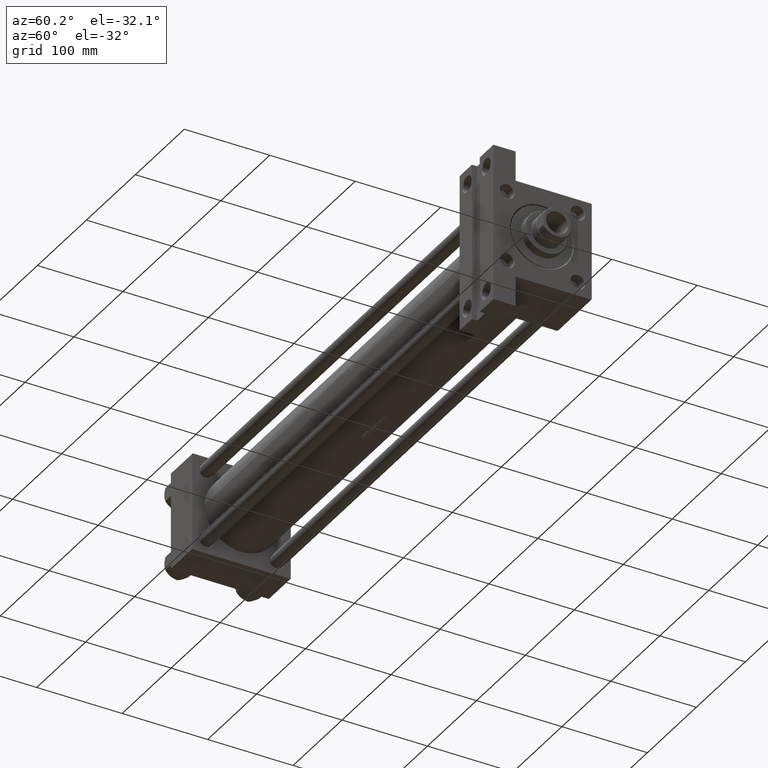
[diagram: clean part render]
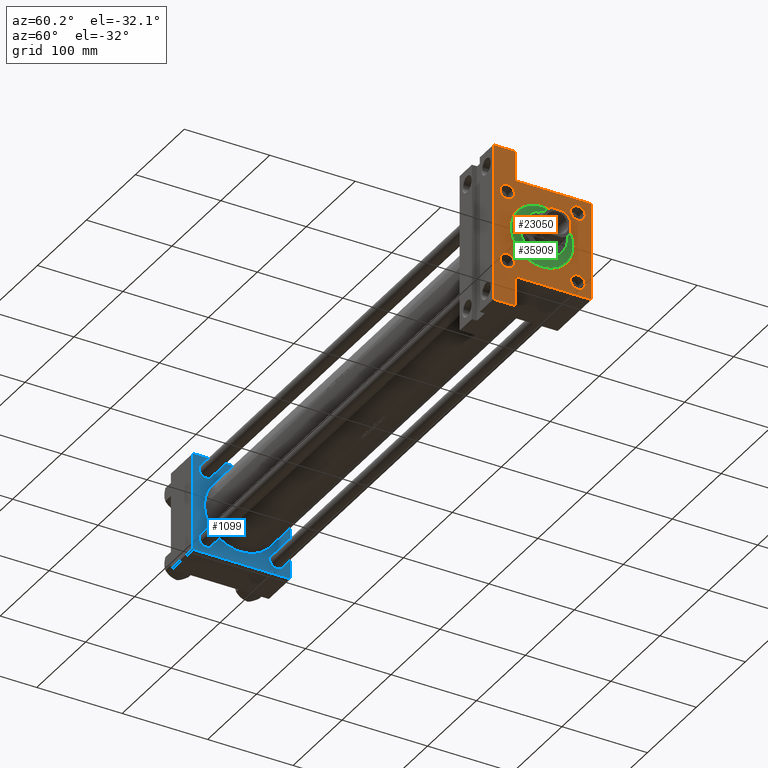
[diagram: same view with three faces highlighted in distinct colors, each labeled with its STEP entity id]
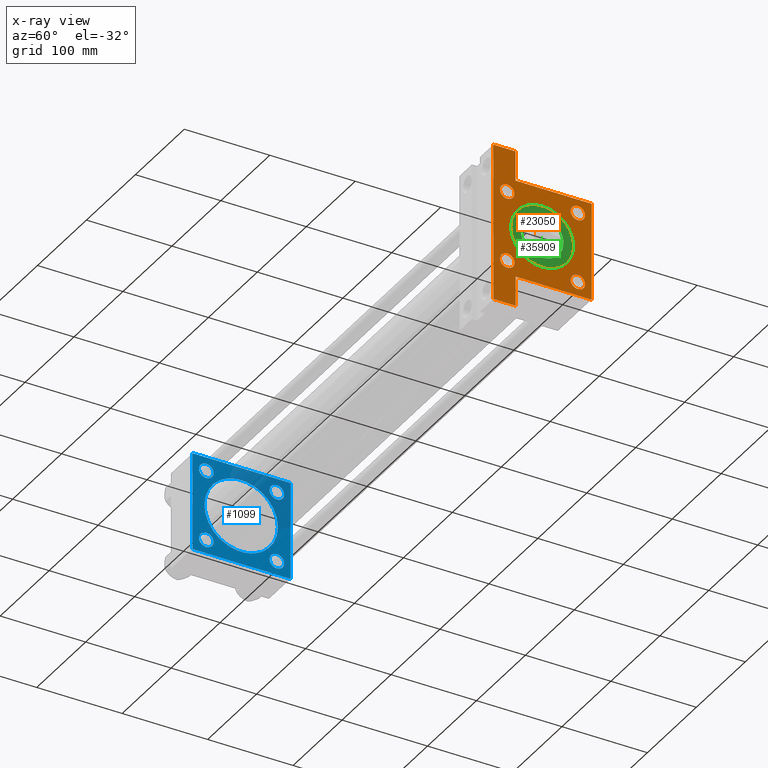
[diagram: x-ray of the same camera — body ghosted, the three highlighted faces saturated]
A machine part, auxiliary view with three faces highlighted in distinct colors.
The next image is the same camera in x-ray (body ghosted, the three faces saturated) — at least one of them is partly hidden behind the body in this view.
Their STEP definitions:

[orange] entity #23050 — the highlighted planar face has unit normal (-1, 0, -0).
#94 = CARTESIAN_POINT ( 'NONE',  ( 659.0000000000000000, 57.50000000000000000, 57.50000000000000711 ) ) ;
#222 = DIRECTION ( 'NONE',  ( -1.000000000000000000, 0.000000000000000000, -0.000000000000000000 ) ) ;
#401 = DIRECTION ( 'NONE',  ( 0.000000000000000000, 0.000000000000000000, 1.000000000000000000 ) ) ;
#826 = ORIENTED_EDGE ( 'NONE', *, *, #7611, .T. ) ;
#922 = PLANE ( 'NONE',  #38541 ) ;
#1409 = CARTESIAN_POINT ( 'NONE',  ( 659.0000000000000000, 0.000000000000000000, 0.000000000000000000 ) ) ;
#1697 = DIRECTION ( 'NONE',  ( 0.000000000000000000, -1.000000000000000000, 0.000000000000000000 ) ) ;
#1767 = VERTEX_POINT ( 'NONE', #25312 ) ;
#1911 = CARTESIAN_POINT ( 'NONE',  ( 659.0000000000000000, 57.00000000000011369, 57.50000000000000711 ) ) ;
#1937 = LINE ( 'NONE', #17260, #14946 ) ;
#1991 = DIRECTION ( 'NONE',  ( 0.000000000000000000, -0.7071067811865082708, 0.7071067811865867636 ) ) ;
#2422 = EDGE_CURVE ( 'NONE', #40833, #14088, #47647, .T. ) ;
#2456 = VERTEX_POINT ( 'NONE', #17989 ) ;
#2484 = EDGE_LOOP ( 'NONE', ( #826, #2988 ) ) ;
#2627 = LINE ( 'NONE', #17470, #30194 ) ;
#2988 = ORIENTED_EDGE ( 'NONE', *, *, #13297, .T. ) ;
#3877 = DIRECTION ( 'NONE',  ( 0.000000000000000000, 0.000000000000000000, 1.000000000000000000 ) ) ;
#4558 = DIRECTION ( 'NONE',  ( 0.000000000000000000, 0.000000000000000000, -1.000000000000000000 ) ) ;
#4612 = CIRCLE ( 'NONE', #20132, 37.49999999999992184 ) ;
#4938 = AXIS2_PLACEMENT_3D ( 'NONE', #40689, #22216, #33376 ) ;
#5137 = CARTESIAN_POINT ( 'NONE',  ( 659.0000000000000000, 0.000000000000000000, -37.99999999999988631 ) ) ;
#5517 = ORIENTED_EDGE ( 'NONE', *, *, #33700, .T. ) ;
#5572 = LINE ( 'NONE', #13836, #22274 ) ;
#6052 = VERTEX_POINT ( 'NONE', #12161 ) ;
#6346 = CARTESIAN_POINT ( 'NONE',  ( 659.0000000000000000, 92.49999999999994316, -31.49999999999997158 ) ) ;
#6355 = CARTESIAN_POINT ( 'NONE',  ( 659.0000000000000000, 41.34999999999999432, 32.85000000000022169 ) ) ;
#6514 = CARTESIAN_POINT ( 'NONE',  ( 659.0000000000000000, 41.34999999999999432, -49.84999999999978826 ) ) ;
#7048 = EDGE_CURVE ( 'NONE', #31820, #17032, #43890, .T. ) ;
#7587 = EDGE_LOOP ( 'NONE', ( #43610, #7822, #29113, #14111, #44778, #10635, #33847, #27330, #24403, #20556 ) ) ;
#7611 = EDGE_CURVE ( 'NONE', #36700, #2456, #26068, .T. ) ;
#7807 = EDGE_CURVE ( 'NONE', #19784, #33980, #15206, .T. ) ;
#7812 = CARTESIAN_POINT ( 'NONE',  ( 659.0000000000000000, -92.50000000000008527, -31.49999999999997158 ) ) ;
#7822 = ORIENTED_EDGE ( 'NONE', *, *, #9986, .T. ) ;
#7829 = AXIS2_PLACEMENT_3D ( 'NONE', #40536, #33715, #401 ) ;
#8285 = VECTOR ( 'NONE', #4558, 1000.000000000000000 ) ;
#8339 = EDGE_LOOP ( 'NONE', ( #24161, #15127 ) ) ;
#9184 = EDGE_CURVE ( 'NONE', #42885, #38340, #44765, .T. ) ;
#9425 = EDGE_CURVE ( 'NONE', #36601, #12091, #5572, .T. ) ;
#9568 = EDGE_CURVE ( 'NONE', #19594, #30643, #41762, .T. ) ;
#9918 = EDGE_LOOP ( 'NONE', ( #28041, #5517 ) ) ;
#9986 = EDGE_CURVE ( 'NONE', #34557, #19784, #17306, .T. ) ;
#10635 = ORIENTED_EDGE ( 'NONE', *, *, #9425, .T. ) ;
#10641 = VERTEX_POINT ( 'NONE', #16892 ) ;
#11128 = VECTOR ( 'NONE', #38661, 1000.000000000000000 ) ;
#11393 = CARTESIAN_POINT ( 'NONE',  ( 659.0000000000000000, 92.49999999999994316, -31.49999999999997158 ) ) ;
#12037 = EDGE_CURVE ( 'NONE', #34557, #6052, #13378, .T. ) ;
#12091 = VERTEX_POINT ( 'NONE', #42795 ) ;
#12121 = AXIS2_PLACEMENT_3D ( 'NONE', #27837, #12780, #42896 ) ;
#12161 = CARTESIAN_POINT ( 'NONE',  ( 659.0000000000000000, 57.49999999999987921, -31.49999999999997158 ) ) ;
#12619 = FACE_BOUND ( 'NONE', #2484, .T. ) ;
#12628 = VERTEX_POINT ( 'NONE', #30540 ) ;
#12780 = DIRECTION ( 'NONE',  ( -1.000000000000000000, 0.000000000000000000, -0.000000000000000000 ) ) ;
#12916 = ORIENTED_EDGE ( 'NONE', *, *, #9184, .T. ) ;
#13297 = EDGE_CURVE ( 'NONE', #2456, #36700, #18158, .T. ) ;
#13378 = LINE ( 'NONE', #31835, #11128 ) ;
#13836 = CARTESIAN_POINT ( 'NONE',  ( 659.0000000000000000, -92.50000000000008527, -31.49999999999997158 ) ) ;
#14088 = VERTEX_POINT ( 'NONE', #6514 ) ;
#14111 = ORIENTED_EDGE ( 'NONE', *, *, #32267, .T. ) ;
#14145 = CARTESIAN_POINT ( 'NONE',  ( 659.0000000000000000, 57.00000000000011369, 57.50000000000000711 ) ) ;
#14802 = CARTESIAN_POINT ( 'NONE',  ( 659.0000000000000000, 41.34999999999999432, -32.85000000000022169 ) ) ;
#14946 = VECTOR ( 'NONE', #1697, 1000.000000000000000 ) ;
#15127 = ORIENTED_EDGE ( 'NONE', *, *, #7048, .T. ) ;
#15206 = LINE ( 'NONE', #94, #47015 ) ;
#15304 = FACE_BOUND ( 'NONE', #32864, .T. ) ;
#15392 = VECTOR ( 'NONE', #37665, 1000.000000000000000 ) ;
#15858 = CARTESIAN_POINT ( 'NONE',  ( 659.0000000000000000, -56.99999999999987921, 57.49999999999999289 ) ) ;
#16150 = CARTESIAN_POINT ( 'NONE',  ( 659.0000000000000000, 0.000000000000000000, -0.4999999999999657496 ) ) ;
#16529 = EDGE_CURVE ( 'NONE', #17032, #31820, #25918, .T. ) ;
#16567 = CARTESIAN_POINT ( 'NONE',  ( 659.0000000000000000, 92.49999999999994316, -57.49999999999997158 ) ) ;
#16892 = CARTESIAN_POINT ( 'NONE',  ( 659.0000000000000000, -92.50000000000008527, -57.49999999999997158 ) ) ;
#17008 = AXIS2_PLACEMENT_3D ( 'NONE', #47501, #18545, #26101 ) ;
#17032 = VERTEX_POINT ( 'NONE', #32539 ) ;
#17260 = CARTESIAN_POINT ( 'NONE',  ( 659.0000000000000000, 92.49999999999994316, -31.49999999999997158 ) ) ;
#17306 = LINE ( 'NONE', #14145, #27694 ) ;
#17470 = CARTESIAN_POINT ( 'NONE',  ( 659.0000000000000000, -57.49999999999999289, 56.99999999999994316 ) ) ;
#17541 = EDGE_LOOP ( 'NONE', ( #12916, #24868 ) ) ;
#17989 = CARTESIAN_POINT ( 'NONE',  ( 659.0000000000000000, 41.34999999999999432, 49.84999999999978826 ) ) ;
#18133 = ORIENTED_EDGE ( 'NONE', *, *, #19611, .T. ) ;
#18158 = CIRCLE ( 'NONE', #25952, 8.499999999999785061 ) ;
#18545 = DIRECTION ( 'NONE',  ( -1.000000000000000000, 0.000000000000000000, -0.000000000000000000 ) ) ;
#18871 = EDGE_CURVE ( 'NONE', #12091, #10641, #27024, .T. ) ;
#19040 = AXIS2_PLACEMENT_3D ( 'NONE', #47921, #25796, #44746 ) ;
#19182 = FACE_BOUND ( 'NONE', #8339, .T. ) ;
#19594 = VERTEX_POINT ( 'NONE', #6346 ) ;
#19611 = EDGE_CURVE ( 'NONE', #14088, #40833, #39986, .T. ) ;
#19784 = VERTEX_POINT ( 'NONE', #1911 ) ;
#20132 = AXIS2_PLACEMENT_3D ( 'NONE', #16150, #23457, #45818 ) ;
#20556 = ORIENTED_EDGE ( 'NONE', *, *, #47711, .T. ) ;
#22146 = DIRECTION ( 'NONE',  ( 0.000000000000000000, 0.000000000000000000, 1.000000000000000000 ) ) ;
#22216 = DIRECTION ( 'NONE',  ( -1.000000000000000000, 0.000000000000000000, -0.000000000000000000 ) ) ;
#22274 = VECTOR ( 'NONE', #31580, 1000.000000000000000 ) ;
#22510 = CARTESIAN_POINT ( 'NONE',  ( 659.0000000000000000, 41.34999999999999432, 41.35000000000000142 ) ) ;
#22846 = CARTESIAN_POINT ( 'NONE',  ( 659.0000000000000000, -57.49999999999999289, 57.49999999999999289 ) ) ;
#23050 = ADVANCED_FACE ( 'NONE', ( #12619, #19182, #37898, #15304, #42277, #34736 ), #922, .F. ) ;
#23457 = DIRECTION ( 'NONE',  ( -1.000000000000000000, 0.000000000000000000, -0.000000000000000000 ) ) ;
#24161 = ORIENTED_EDGE ( 'NONE', *, *, #16529, .T. ) ;
#24403 = ORIENTED_EDGE ( 'NONE', *, *, #9568, .F. ) ;
#24692 = ORIENTED_EDGE ( 'NONE', *, *, #2422, .T. ) ;
#24868 = ORIENTED_EDGE ( 'NONE', *, *, #32486, .T. ) ;
#25257 = CARTESIAN_POINT ( 'NONE',  ( 659.0000000000000000, -41.34999999999999432, 41.35000000000000142 ) ) ;
#25312 = CARTESIAN_POINT ( 'NONE',  ( 659.0000000000000000, 4.592425496802564900E-15, 36.99999999999995737 ) ) ;
#25333 = CARTESIAN_POINT ( 'NONE',  ( 659.0000000000000000, -57.49999999999999289, -31.49999999999997158 ) ) ;
#25796 = DIRECTION ( 'NONE',  ( -1.000000000000000000, 0.000000000000000000, -0.000000000000000000 ) ) ;
#25907 = DIRECTION ( 'NONE',  ( 0.000000000000000000, -1.000000000000000000, -1.206764157201257291E-16 ) ) ;
#25918 = CIRCLE ( 'NONE', #4938, 8.499999999999785061 ) ;
#25952 = AXIS2_PLACEMENT_3D ( 'NONE', #22510, #43724, #47131 ) ;
#26015 = VECTOR ( 'NONE', #45731, 1000.000000000000000 ) ;
#26068 = CIRCLE ( 'NONE', #12121, 8.499999999999785061 ) ;
#26101 = DIRECTION ( 'NONE',  ( 0.000000000000000000, 0.000000000000000000, 1.000000000000000000 ) ) ;
#26692 = CARTESIAN_POINT ( 'NONE',  ( 659.0000000000000000, 57.50000000000000000, 57.00000000000006395 ) ) ;
#27024 = LINE ( 'NONE', #7812, #26015 ) ;
#27330 = ORIENTED_EDGE ( 'NONE', *, *, #41778, .F. ) ;
#27694 = VECTOR ( 'NONE', #1991, 1000.000000000000114 ) ;
#27837 = CARTESIAN_POINT ( 'NONE',  ( 659.0000000000000000, 41.34999999999999432, 41.35000000000000142 ) ) ;
#28041 = ORIENTED_EDGE ( 'NONE', *, *, #44531, .T. ) ;
#28233 = CARTESIAN_POINT ( 'NONE',  ( 659.0000000000000000, -41.34999999999999432, 49.84999999999978826 ) ) ;
#29113 = ORIENTED_EDGE ( 'NONE', *, *, #7807, .T. ) ;
#29938 = EDGE_CURVE ( 'NONE', #12628, #36601, #40838, .T. ) ;
#30194 = VECTOR ( 'NONE', #33488, 1000.000000000000114 ) ;
#30540 = CARTESIAN_POINT ( 'NONE',  ( 659.0000000000000000, -57.49999999999999289, 56.99999999999994316 ) ) ;
#30643 = VERTEX_POINT ( 'NONE', #16567 ) ;
#30774 = CARTESIAN_POINT ( 'NONE',  ( 659.0000000000000000, -41.34999999999999432, -32.85000000000022169 ) ) ;
#30807 = AXIS2_PLACEMENT_3D ( 'NONE', #47446, #32831, #22146 ) ;
#31142 = CIRCLE ( 'NONE', #7829, 37.49999999999992184 ) ;
#31580 = DIRECTION ( 'NONE',  ( -0.000000000000000000, -1.000000000000000000, -0.000000000000000000 ) ) ;
#31820 = VERTEX_POINT ( 'NONE', #28233 ) ;
#31835 = CARTESIAN_POINT ( 'NONE',  ( 659.0000000000000000, 57.50000000000000000, 57.50000000000000711 ) ) ;
#32267 = EDGE_CURVE ( 'NONE', #33980, #12628, #2627, .T. ) ;
#32486 = EDGE_CURVE ( 'NONE', #38340, #42885, #33309, .T. ) ;
#32539 = CARTESIAN_POINT ( 'NONE',  ( 659.0000000000000000, -41.34999999999999432, 32.85000000000022169 ) ) ;
#32831 = DIRECTION ( 'NONE',  ( -1.000000000000000000, 0.000000000000000000, -0.000000000000000000 ) ) ;
#32864 = EDGE_LOOP ( 'NONE', ( #18133, #24692 ) ) ;
#33309 = CIRCLE ( 'NONE', #17008, 8.499999999999785061 ) ;
#33376 = DIRECTION ( 'NONE',  ( 0.000000000000000000, 0.000000000000000000, 1.000000000000000000 ) ) ;
#33488 = DIRECTION ( 'NONE',  ( -0.000000000000000000, -0.7071067811865916486, -0.7071067811865033859 ) ) ;
#33700 = EDGE_CURVE ( 'NONE', #1767, #39626, #4612, .T. ) ;
#33715 = DIRECTION ( 'NONE',  ( -1.000000000000000000, 0.000000000000000000, -0.000000000000000000 ) ) ;
#33847 = ORIENTED_EDGE ( 'NONE', *, *, #18871, .T. ) ;
#33980 = VERTEX_POINT ( 'NONE', #15858 ) ;
#34557 = VERTEX_POINT ( 'NONE', #26692 ) ;
#34736 = FACE_OUTER_BOUND ( 'NONE', #7587, .T. ) ;
#36601 = VERTEX_POINT ( 'NONE', #25333 ) ;
#36700 = VERTEX_POINT ( 'NONE', #6355 ) ;
#37199 = CARTESIAN_POINT ( 'NONE',  ( 659.0000000000000000, 41.34999999999999432, -41.35000000000000142 ) ) ;
#37665 = DIRECTION ( 'NONE',  ( 0.000000000000000000, 0.000000000000000000, -1.000000000000000000 ) ) ;
#37898 = FACE_BOUND ( 'NONE', #17541, .T. ) ;
#38340 = VERTEX_POINT ( 'NONE', #30774 ) ;
#38541 = AXIS2_PLACEMENT_3D ( 'NONE', #1409, #41559, #45204 ) ;
#38661 = DIRECTION ( 'NONE',  ( 0.000000000000000000, 0.000000000000000000, -1.000000000000000000 ) ) ;
#38676 = CARTESIAN_POINT ( 'NONE',  ( 659.0000000000000000, -41.34999999999999432, -49.84999999999978826 ) ) ;
#39626 = VERTEX_POINT ( 'NONE', #5137 ) ;
#39977 = CARTESIAN_POINT ( 'NONE',  ( 659.0000000000000000, 57.50000000000000000, -57.49999999999996447 ) ) ;
#39986 = CIRCLE ( 'NONE', #19040, 8.499999999999785061 ) ;
#40536 = CARTESIAN_POINT ( 'NONE',  ( 659.0000000000000000, 0.000000000000000000, -0.4999999999999657496 ) ) ;
#40689 = CARTESIAN_POINT ( 'NONE',  ( 659.0000000000000000, -41.34999999999999432, 41.35000000000000142 ) ) ;
#40802 = DIRECTION ( 'NONE',  ( 0.000000000000000000, 0.000000000000000000, 1.000000000000000000 ) ) ;
#40833 = VERTEX_POINT ( 'NONE', #14802 ) ;
#40838 = LINE ( 'NONE', #22846, #15392 ) ;
#41559 = DIRECTION ( 'NONE',  ( -1.000000000000000000, 0.000000000000000000, -0.000000000000000000 ) ) ;
#41762 = LINE ( 'NONE', #11393, #8285 ) ;
#41778 = EDGE_CURVE ( 'NONE', #30643, #10641, #47037, .T. ) ;
#42207 = AXIS2_PLACEMENT_3D ( 'NONE', #37199, #222, #3877 ) ;
#42277 = FACE_BOUND ( 'NONE', #9918, .T. ) ;
#42795 = CARTESIAN_POINT ( 'NONE',  ( 659.0000000000000000, -92.50000000000008527, -31.49999999999997158 ) ) ;
#42885 = VERTEX_POINT ( 'NONE', #38676 ) ;
#42896 = DIRECTION ( 'NONE',  ( 0.000000000000000000, 0.000000000000000000, 1.000000000000000000 ) ) ;
#43127 = AXIS2_PLACEMENT_3D ( 'NONE', #25257, #47615, #40802 ) ;
#43610 = ORIENTED_EDGE ( 'NONE', *, *, #12037, .F. ) ;
#43626 = DIRECTION ( 'NONE',  ( 0.000000000000000000, -1.000000000000000000, -1.206764157201257291E-16 ) ) ;
#43724 = DIRECTION ( 'NONE',  ( -1.000000000000000000, 0.000000000000000000, -0.000000000000000000 ) ) ;
#43890 = CIRCLE ( 'NONE', #43127, 8.499999999999785061 ) ;
#44240 = VECTOR ( 'NONE', #43626, 1000.000000000000000 ) ;
#44531 = EDGE_CURVE ( 'NONE', #39626, #1767, #31142, .T. ) ;
#44746 = DIRECTION ( 'NONE',  ( 0.000000000000000000, 0.000000000000000000, 1.000000000000000000 ) ) ;
#44765 = CIRCLE ( 'NONE', #30807, 8.499999999999785061 ) ;
#44778 = ORIENTED_EDGE ( 'NONE', *, *, #29938, .T. ) ;
#45204 = DIRECTION ( 'NONE',  ( -0.000000000000000000, 0.000000000000000000, 1.000000000000000000 ) ) ;
#45731 = DIRECTION ( 'NONE',  ( 0.000000000000000000, 0.000000000000000000, -1.000000000000000000 ) ) ;
#45818 = DIRECTION ( 'NONE',  ( 0.000000000000000000, 0.000000000000000000, 1.000000000000000000 ) ) ;
#47015 = VECTOR ( 'NONE', #25907, 1000.000000000000000 ) ;
#47037 = LINE ( 'NONE', #39977, #44240 ) ;
#47131 = DIRECTION ( 'NONE',  ( 0.000000000000000000, 0.000000000000000000, 1.000000000000000000 ) ) ;
#47446 = CARTESIAN_POINT ( 'NONE',  ( 659.0000000000000000, -41.34999999999999432, -41.35000000000000142 ) ) ;
#47501 = CARTESIAN_POINT ( 'NONE',  ( 659.0000000000000000, -41.34999999999999432, -41.35000000000000142 ) ) ;
#47615 = DIRECTION ( 'NONE',  ( -1.000000000000000000, 0.000000000000000000, -0.000000000000000000 ) ) ;
#47647 = CIRCLE ( 'NONE', #42207, 8.499999999999785061 ) ;
#47711 = EDGE_CURVE ( 'NONE', #19594, #6052, #1937, .T. ) ;
#47921 = CARTESIAN_POINT ( 'NONE',  ( 659.0000000000000000, 41.34999999999999432, -41.35000000000000142 ) ) ;

[blue] entity #1099 — the highlighted planar face has unit normal (-1, 0, -0).
#338 = CIRCLE ( 'NONE', #36081, 8.499999999999952038 ) ;
#515 = DIRECTION ( 'NONE',  ( 0.000000000000000000, -1.000000000000000000, -1.206764157201257045E-16 ) ) ;
#668 = DIRECTION ( 'NONE',  ( 0.000000000000000000, 0.000000000000000000, 1.000000000000000000 ) ) ;
#802 = EDGE_CURVE ( 'NONE', #38621, #28590, #41624, .T. ) ;
#976 = CARTESIAN_POINT ( 'NONE',  ( 44.00000000000000000, -41.34999999999998721, 41.35000000000000853 ) ) ;
#1099 = ADVANCED_FACE ( 'NONE', ( #11424, #11670, #41087, #22610, #37431, #15309 ), #22851, .F. ) ;
#1526 = VERTEX_POINT ( 'NONE', #39705 ) ;
#1604 = DIRECTION ( 'NONE',  ( 1.000000000000000000, -0.000000000000000000, 0.000000000000000000 ) ) ;
#1627 = CARTESIAN_POINT ( 'NONE',  ( 44.00000000000000000, 41.34999999999999432, 41.35000000000000142 ) ) ;
#1669 = ORIENTED_EDGE ( 'NONE', *, *, #2249, .T. ) ;
#1692 = CARTESIAN_POINT ( 'NONE',  ( 44.00000000000000000, -41.34999999999998721, -41.35000000000000853 ) ) ;
#1832 = DIRECTION ( 'NONE',  ( 0.000000000000000000, 0.000000000000000000, 1.000000000000000000 ) ) ;
#1895 = CARTESIAN_POINT ( 'NONE',  ( 44.00000000000000000, -41.34999999999998721, 41.35000000000000853 ) ) ;
#2094 = DIRECTION ( 'NONE',  ( 0.000000000000000000, 0.000000000000000000, 1.000000000000000000 ) ) ;
#2106 = CIRCLE ( 'NONE', #16879, 8.499999999999952038 ) ;
#2249 = EDGE_CURVE ( 'NONE', #9363, #32225, #24369, .T. ) ;
#2556 = DIRECTION ( 'NONE',  ( -0.000000000000000000, -0.7071067811865376918, -0.7071067811865573427 ) ) ;
#2676 = VERTEX_POINT ( 'NONE', #5561 ) ;
#3039 = ORIENTED_EDGE ( 'NONE', *, *, #17247, .T. ) ;
#3496 = CARTESIAN_POINT ( 'NONE',  ( 44.00000000000000000, 57.49999999999999289, 57.00000000000003553 ) ) ;
#3660 = CARTESIAN_POINT ( 'NONE',  ( 44.00000000000000000, 41.34999999999999432, 49.84999999999995879 ) ) ;
#3747 = VECTOR ( 'NONE', #2556, 1000.000000000000114 ) ;
#4312 = AXIS2_PLACEMENT_3D ( 'NONE', #20832, #46367, #2094 ) ;
#4322 = CARTESIAN_POINT ( 'NONE',  ( 44.00000000000000000, 41.34999999999999432, -41.35000000000000142 ) ) ;
#5022 = CARTESIAN_POINT ( 'NONE',  ( 44.00000000000000000, 57.49999999999999289, -57.49999999999999289 ) ) ;
#5561 = CARTESIAN_POINT ( 'NONE',  ( 44.00000000000000000, -57.00000000000000711, -57.50000000000000711 ) ) ;
#6047 = CARTESIAN_POINT ( 'NONE',  ( 44.00000000000000000, 57.49999999999999289, -57.00000000000000711 ) ) ;
#6615 = VERTEX_POINT ( 'NONE', #45578 ) ;
#7249 = EDGE_CURVE ( 'NONE', #16138, #6615, #12874, .T. ) ;
#7311 = CARTESIAN_POINT ( 'NONE',  ( 44.00000000000000000, 41.34999999999999432, -49.84999999999995879 ) ) ;
#7378 = CARTESIAN_POINT ( 'NONE',  ( 44.00000000000000000, -41.34999999999998721, 32.85000000000005826 ) ) ;
#7491 = ORIENTED_EDGE ( 'NONE', *, *, #14444, .F. ) ;
#7771 = DIRECTION ( 'NONE',  ( -0.000000000000000000, 0.000000000000000000, 1.000000000000000000 ) ) ;
#7935 = CARTESIAN_POINT ( 'NONE',  ( 44.00000000000000000, -57.50000000000000711, 57.49999999999999289 ) ) ;
#8253 = DIRECTION ( 'NONE',  ( -1.000000000000000000, 0.000000000000000000, -0.000000000000000000 ) ) ;
#8902 = EDGE_LOOP ( 'NONE', ( #30840, #16376 ) ) ;
#9296 = DIRECTION ( 'NONE',  ( 1.000000000000000000, -0.000000000000000000, 0.000000000000000000 ) ) ;
#9363 = VERTEX_POINT ( 'NONE', #30149 ) ;
#9442 = DIRECTION ( 'NONE',  ( 0.000000000000000000, 0.000000000000000000, 1.000000000000000000 ) ) ;
#9659 = VECTOR ( 'NONE', #47031, 1000.000000000000114 ) ;
#9842 = LINE ( 'NONE', #20297, #9659 ) ;
#10967 = CARTESIAN_POINT ( 'NONE',  ( 44.00000000000000000, -57.50000000000000711, 57.00000000000000711 ) ) ;
#10978 = VERTEX_POINT ( 'NONE', #40391 ) ;
#11394 = ORIENTED_EDGE ( 'NONE', *, *, #44439, .T. ) ;
#11424 = FACE_BOUND ( 'NONE', #12320, .T. ) ;
#11660 = EDGE_LOOP ( 'NONE', ( #33229, #19299 ) ) ;
#11670 = FACE_BOUND ( 'NONE', #8902, .T. ) ;
#12320 = EDGE_LOOP ( 'NONE', ( #43699, #1669 ) ) ;
#12484 = EDGE_CURVE ( 'NONE', #32685, #25410, #26902, .T. ) ;
#12578 = CARTESIAN_POINT ( 'NONE',  ( 44.00000000000004263, 6.123233995736685917E-17, -0.4999999999999935052 ) ) ;
#12641 = CARTESIAN_POINT ( 'NONE',  ( 44.00000000000000000, 41.34999999999999432, 32.85000000000005116 ) ) ;
#12642 = DIRECTION ( 'NONE',  ( 0.000000000000000000, -0.7071067811865573427, 0.7071067811865376918 ) ) ;
#12804 = VERTEX_POINT ( 'NONE', #3496 ) ;
#12874 = CIRCLE ( 'NONE', #4312, 8.499999999999952038 ) ;
#13308 = EDGE_CURVE ( 'NONE', #10978, #38998, #20887, .T. ) ;
#13376 = CARTESIAN_POINT ( 'NONE',  ( 44.00000000000000000, -41.34999999999998721, 49.84999999999996589 ) ) ;
#13603 = DIRECTION ( 'NONE',  ( -0.000000000000000000, 0.7071067811865376918, 0.7071067811865573427 ) ) ;
#14048 = AXIS2_PLACEMENT_3D ( 'NONE', #12578, #1604, #19616 ) ;
#14114 = AXIS2_PLACEMENT_3D ( 'NONE', #4322, #19167, #668 ) ;
#14444 = EDGE_CURVE ( 'NONE', #10978, #2676, #34212, .T. ) ;
#14459 = CARTESIAN_POINT ( 'NONE',  ( 44.00000000000000000, 57.00000000000000711, 57.50000000000000711 ) ) ;
#15309 = FACE_OUTER_BOUND ( 'NONE', #19102, .T. ) ;
#15889 = VECTOR ( 'NONE', #19617, 1000.000000000000000 ) ;
#16138 = VERTEX_POINT ( 'NONE', #7311 ) ;
#16376 = ORIENTED_EDGE ( 'NONE', *, *, #47169, .T. ) ;
#16879 = AXIS2_PLACEMENT_3D ( 'NONE', #1692, #31596, #46438 ) ;
#17224 = CIRCLE ( 'NONE', #14114, 8.499999999999952038 ) ;
#17247 = EDGE_CURVE ( 'NONE', #25410, #2676, #9842, .T. ) ;
#17312 = VECTOR ( 'NONE', #515, 1000.000000000000000 ) ;
#17683 = DIRECTION ( 'NONE',  ( -1.000000000000000000, 0.000000000000000000, -0.000000000000000000 ) ) ;
#18314 = EDGE_CURVE ( 'NONE', #46853, #19682, #338, .T. ) ;
#19102 = EDGE_LOOP ( 'NONE', ( #7491, #23498, #31663, #42647, #20175, #23188, #41296, #3039 ) ) ;
#19167 = DIRECTION ( 'NONE',  ( -1.000000000000000000, 0.000000000000000000, -0.000000000000000000 ) ) ;
#19169 = AXIS2_PLACEMENT_3D ( 'NONE', #1895, #17683, #9442 ) ;
#19299 = ORIENTED_EDGE ( 'NONE', *, *, #23955, .T. ) ;
#19616 = DIRECTION ( 'NONE',  ( 0.000000000000000000, 0.000000000000000000, 1.000000000000000000 ) ) ;
#19617 = DIRECTION ( 'NONE',  ( 0.000000000000000000, -1.000000000000000000, -1.206764157201257045E-16 ) ) ;
#19682 = VERTEX_POINT ( 'NONE', #12641 ) ;
#20175 = ORIENTED_EDGE ( 'NONE', *, *, #802, .T. ) ;
#20297 = CARTESIAN_POINT ( 'NONE',  ( 44.00000000000000000, -57.00000000000000711, -57.50000000000000711 ) ) ;
#20832 = CARTESIAN_POINT ( 'NONE',  ( 44.00000000000000000, 41.34999999999999432, -41.35000000000000142 ) ) ;
#20887 = LINE ( 'NONE', #6047, #29793 ) ;
#22376 = CARTESIAN_POINT ( 'NONE',  ( 44.00000000000004263, 6.123233995736685917E-17, 42.50000000000000000 ) ) ;
#22610 = FACE_BOUND ( 'NONE', #25362, .T. ) ;
#22657 = DIRECTION ( 'NONE',  ( 0.000000000000000000, 0.000000000000000000, 1.000000000000000000 ) ) ;
#22851 = PLANE ( 'NONE',  #39823 ) ;
#23188 = ORIENTED_EDGE ( 'NONE', *, *, #39155, .T. ) ;
#23498 = ORIENTED_EDGE ( 'NONE', *, *, #13308, .T. ) ;
#23753 = CARTESIAN_POINT ( 'NONE',  ( 44.00000000000000000, -41.34999999999998721, -41.35000000000000853 ) ) ;
#23955 = EDGE_CURVE ( 'NONE', #44138, #36348, #33912, .T. ) ;
#24024 = DIRECTION ( 'NONE',  ( 0.000000000000000000, 0.000000000000000000, 1.000000000000000000 ) ) ;
#24272 = LINE ( 'NONE', #28395, #33427 ) ;
#24369 = CIRCLE ( 'NONE', #26690, 8.499999999999952038 ) ;
#24907 = CIRCLE ( 'NONE', #27985, 43.00000000000000000 ) ;
#25255 = CARTESIAN_POINT ( 'NONE',  ( 44.00000000000000000, -41.34999999999998721, -49.84999999999996589 ) ) ;
#25362 = EDGE_LOOP ( 'NONE', ( #11394, #42309 ) ) ;
#25410 = VERTEX_POINT ( 'NONE', #26844 ) ;
#26560 = CARTESIAN_POINT ( 'NONE',  ( 44.00000000000000000, 41.34999999999999432, 41.35000000000000142 ) ) ;
#26690 = AXIS2_PLACEMENT_3D ( 'NONE', #23753, #42918, #1832 ) ;
#26844 = CARTESIAN_POINT ( 'NONE',  ( 44.00000000000000000, -57.50000000000000711, -57.00000000000000711 ) ) ;
#26902 = LINE ( 'NONE', #7935, #39892 ) ;
#27954 = EDGE_CURVE ( 'NONE', #32225, #9363, #2106, .T. ) ;
#27985 = AXIS2_PLACEMENT_3D ( 'NONE', #45538, #9296, #35066 ) ;
#28395 = CARTESIAN_POINT ( 'NONE',  ( 44.00000000000000000, 57.49999999999999289, 57.50000000000000711 ) ) ;
#28590 = VERTEX_POINT ( 'NONE', #32856 ) ;
#28722 = EDGE_CURVE ( 'NONE', #36348, #44138, #44083, .T. ) ;
#29570 = ORIENTED_EDGE ( 'NONE', *, *, #44639, .F. ) ;
#29793 = VECTOR ( 'NONE', #13603, 1000.000000000000114 ) ;
#30149 = CARTESIAN_POINT ( 'NONE',  ( 44.00000000000000000, -41.34999999999998721, -32.85000000000005826 ) ) ;
#30295 = DIRECTION ( 'NONE',  ( 0.000000000000000000, 0.000000000000000000, -1.000000000000000000 ) ) ;
#30840 = ORIENTED_EDGE ( 'NONE', *, *, #7249, .T. ) ;
#31103 = LINE ( 'NONE', #45944, #31814 ) ;
#31596 = DIRECTION ( 'NONE',  ( -1.000000000000000000, 0.000000000000000000, -0.000000000000000000 ) ) ;
#31663 = ORIENTED_EDGE ( 'NONE', *, *, #43311, .F. ) ;
#31814 = VECTOR ( 'NONE', #12642, 1000.000000000000114 ) ;
#31973 = VERTEX_POINT ( 'NONE', #22376 ) ;
#32225 = VERTEX_POINT ( 'NONE', #25255 ) ;
#32685 = VERTEX_POINT ( 'NONE', #10967 ) ;
#32856 = CARTESIAN_POINT ( 'NONE',  ( 44.00000000000000000, -57.00000000000003553, 57.49999999999999289 ) ) ;
#33229 = ORIENTED_EDGE ( 'NONE', *, *, #28722, .T. ) ;
#33427 = VECTOR ( 'NONE', #43215, 1000.000000000000000 ) ;
#33831 = CARTESIAN_POINT ( 'NONE',  ( 44.00000000000000000, 57.49999999999999289, 57.50000000000000711 ) ) ;
#33912 = CIRCLE ( 'NONE', #19169, 8.499999999999952038 ) ;
#34212 = LINE ( 'NONE', #5022, #15889 ) ;
#35066 = DIRECTION ( 'NONE',  ( 0.000000000000000000, 0.000000000000000000, 1.000000000000000000 ) ) ;
#35218 = DIRECTION ( 'NONE',  ( 0.000000000000000000, 0.000000000000000000, 1.000000000000000000 ) ) ;
#35249 = EDGE_CURVE ( 'NONE', #12804, #38621, #31103, .T. ) ;
#35883 = CARTESIAN_POINT ( 'NONE',  ( 44.00000000000000000, -57.50000000000000711, 57.00000000000000711 ) ) ;
#36081 = AXIS2_PLACEMENT_3D ( 'NONE', #1627, #41771, #24024 ) ;
#36348 = VERTEX_POINT ( 'NONE', #7378 ) ;
#36504 = EDGE_CURVE ( 'NONE', #1526, #31973, #24907, .T. ) ;
#37237 = DIRECTION ( 'NONE',  ( -1.000000000000000000, 0.000000000000000000, -0.000000000000000000 ) ) ;
#37361 = CIRCLE ( 'NONE', #45906, 8.499999999999952038 ) ;
#37431 = FACE_BOUND ( 'NONE', #47798, .T. ) ;
#37738 = DIRECTION ( 'NONE',  ( -1.000000000000000000, 0.000000000000000000, -0.000000000000000000 ) ) ;
#38621 = VERTEX_POINT ( 'NONE', #14459 ) ;
#38998 = VERTEX_POINT ( 'NONE', #39044 ) ;
#39044 = CARTESIAN_POINT ( 'NONE',  ( 44.00000000000000000, 57.49999999999999289, -57.00000000000000711 ) ) ;
#39155 = EDGE_CURVE ( 'NONE', #28590, #32685, #39528, .T. ) ;
#39433 = AXIS2_PLACEMENT_3D ( 'NONE', #976, #37237, #22657 ) ;
#39528 = LINE ( 'NONE', #35883, #3747 ) ;
#39705 = CARTESIAN_POINT ( 'NONE',  ( 44.00000000000004263, 5.327213576290985256E-15, -43.49999999999999289 ) ) ;
#39823 = AXIS2_PLACEMENT_3D ( 'NONE', #45211, #8253, #7771 ) ;
#39892 = VECTOR ( 'NONE', #30295, 1000.000000000000000 ) ;
#40391 = CARTESIAN_POINT ( 'NONE',  ( 44.00000000000000000, 57.00000000000002132, -57.49999999999999289 ) ) ;
#41087 = FACE_BOUND ( 'NONE', #11660, .T. ) ;
#41296 = ORIENTED_EDGE ( 'NONE', *, *, #12484, .T. ) ;
#41624 = LINE ( 'NONE', #33831, #17312 ) ;
#41771 = DIRECTION ( 'NONE',  ( -1.000000000000000000, 0.000000000000000000, -0.000000000000000000 ) ) ;
#42309 = ORIENTED_EDGE ( 'NONE', *, *, #18314, .T. ) ;
#42647 = ORIENTED_EDGE ( 'NONE', *, *, #35249, .T. ) ;
#42918 = DIRECTION ( 'NONE',  ( -1.000000000000000000, 0.000000000000000000, -0.000000000000000000 ) ) ;
#43215 = DIRECTION ( 'NONE',  ( 0.000000000000000000, 0.000000000000000000, -1.000000000000000000 ) ) ;
#43311 = EDGE_CURVE ( 'NONE', #12804, #38998, #24272, .T. ) ;
#43349 = ORIENTED_EDGE ( 'NONE', *, *, #36504, .F. ) ;
#43532 = CIRCLE ( 'NONE', #14048, 43.00000000000000000 ) ;
#43699 = ORIENTED_EDGE ( 'NONE', *, *, #27954, .T. ) ;
#44083 = CIRCLE ( 'NONE', #39433, 8.499999999999952038 ) ;
#44138 = VERTEX_POINT ( 'NONE', #13376 ) ;
#44439 = EDGE_CURVE ( 'NONE', #19682, #46853, #37361, .T. ) ;
#44639 = EDGE_CURVE ( 'NONE', #31973, #1526, #43532, .T. ) ;
#45211 = CARTESIAN_POINT ( 'NONE',  ( 44.00000000000000000, 0.000000000000000000, 0.000000000000000000 ) ) ;
#45538 = CARTESIAN_POINT ( 'NONE',  ( 44.00000000000004263, 6.123233995736685917E-17, -0.4999999999999935052 ) ) ;
#45578 = CARTESIAN_POINT ( 'NONE',  ( 44.00000000000000000, 41.34999999999999432, -32.85000000000005116 ) ) ;
#45906 = AXIS2_PLACEMENT_3D ( 'NONE', #26560, #37738, #35218 ) ;
#45944 = CARTESIAN_POINT ( 'NONE',  ( 44.00000000000000000, 57.00000000000000711, 57.50000000000000711 ) ) ;
#46367 = DIRECTION ( 'NONE',  ( -1.000000000000000000, 0.000000000000000000, -0.000000000000000000 ) ) ;
#46438 = DIRECTION ( 'NONE',  ( 0.000000000000000000, 0.000000000000000000, 1.000000000000000000 ) ) ;
#46853 = VERTEX_POINT ( 'NONE', #3660 ) ;
#47031 = DIRECTION ( 'NONE',  ( 0.000000000000000000, 0.7071067811865474617, -0.7071067811865474617 ) ) ;
#47169 = EDGE_CURVE ( 'NONE', #6615, #16138, #17224, .T. ) ;
#47798 = EDGE_LOOP ( 'NONE', ( #29570, #43349 ) ) ;

[green] entity #35909 — the highlighted planar face has unit normal (1, 0, 0).
#54 = VERTEX_POINT ( 'NONE', #15968 ) ;
#748 = CARTESIAN_POINT ( 'NONE',  ( 0.000000000000000000, 0.000000000000000000, 28.69999999999999929 ) ) ;
#942 = FACE_OUTER_BOUND ( 'NONE', #39230, .T. ) ;
#2526 = CARTESIAN_POINT ( 'NONE',  ( 25.00000000000000000, 3.061616997868383043E-15, 28.69999999999999929 ) ) ;
#3945 = AXIS2_PLACEMENT_3D ( 'NONE', #35963, #47385, #9949 ) ;
#4409 = DIRECTION ( 'NONE',  ( 1.000000000000000000, 0.000000000000000000, 0.000000000000000000 ) ) ;
#4847 = DIRECTION ( 'NONE',  ( 0.000000000000000000, 0.000000000000000000, 1.000000000000000000 ) ) ;
#6752 = CARTESIAN_POINT ( 'NONE',  ( 0.000000000000000000, 0.000000000000000000, 28.69999999999999929 ) ) ;
#7188 = CARTESIAN_POINT ( 'NONE',  ( 0.000000000000000000, 0.000000000000000000, 28.69999999999999929 ) ) ;
#7354 = EDGE_CURVE ( 'NONE', #37812, #8662, #25303, .T. ) ;
#7713 = DIRECTION ( 'NONE',  ( 0.000000000000000000, 0.000000000000000000, 1.000000000000000000 ) ) ;
#8590 = AXIS2_PLACEMENT_3D ( 'NONE', #15804, #4847, #27233 ) ;
#8662 = VERTEX_POINT ( 'NONE', #22741 ) ;
#9613 = VERTEX_POINT ( 'NONE', #26467 ) ;
#9949 = DIRECTION ( 'NONE',  ( 1.000000000000000000, 0.000000000000000000, 0.000000000000000000 ) ) ;
#11121 = DIRECTION ( 'NONE',  ( 1.000000000000000000, 0.000000000000000000, 0.000000000000000000 ) ) ;
#12407 = PLANE ( 'NONE',  #8590 ) ;
#13940 = ORIENTED_EDGE ( 'NONE', *, *, #23514, .T. ) ;
#14019 = DIRECTION ( 'NONE',  ( 1.000000000000000000, 0.000000000000000000, 0.000000000000000000 ) ) ;
#15804 = CARTESIAN_POINT ( 'NONE',  ( 0.000000000000000000, 0.000000000000000000, 28.69999999999999929 ) ) ;
#15968 = CARTESIAN_POINT ( 'NONE',  ( 36.00000000000000000, 4.408728476930470856E-15, 28.69999999999999929 ) ) ;
#17608 = AXIS2_PLACEMENT_3D ( 'NONE', #6752, #7713, #11121 ) ;
#19077 = AXIS2_PLACEMENT_3D ( 'NONE', #7188, #43666, #14019 ) ;
#22741 = CARTESIAN_POINT ( 'NONE',  ( -25.00000000000000000, 0.000000000000000000, 28.69999999999999929 ) ) ;
#23514 = EDGE_CURVE ( 'NONE', #9613, #54, #38574, .T. ) ;
#24000 = EDGE_CURVE ( 'NONE', #54, #9613, #39363, .T. ) ;
#24671 = ORIENTED_EDGE ( 'NONE', *, *, #7354, .F. ) ;
#25303 = CIRCLE ( 'NONE', #19077, 25.00000000000000000 ) ;
#26467 = CARTESIAN_POINT ( 'NONE',  ( -36.00000000000000000, 0.000000000000000000, 28.69999999999999929 ) ) ;
#27233 = DIRECTION ( 'NONE',  ( 1.000000000000000000, 0.000000000000000000, -0.000000000000000000 ) ) ;
#27564 = ORIENTED_EDGE ( 'NONE', *, *, #24000, .T. ) ;
#30378 = EDGE_LOOP ( 'NONE', ( #41378, #24671 ) ) ;
#35909 = ADVANCED_FACE ( 'NONE', ( #45707, #942 ), #12407, .T. ) ;
#35963 = CARTESIAN_POINT ( 'NONE',  ( 0.000000000000000000, 0.000000000000000000, 28.69999999999999929 ) ) ;
#37046 = EDGE_CURVE ( 'NONE', #8662, #37812, #40440, .T. ) ;
#37812 = VERTEX_POINT ( 'NONE', #2526 ) ;
#38574 = CIRCLE ( 'NONE', #42464, 36.00000000000000000 ) ;
#39230 = EDGE_LOOP ( 'NONE', ( #13940, #27564 ) ) ;
#39363 = CIRCLE ( 'NONE', #17608, 36.00000000000000000 ) ;
#40440 = CIRCLE ( 'NONE', #3945, 25.00000000000000000 ) ;
#41378 = ORIENTED_EDGE ( 'NONE', *, *, #37046, .F. ) ;
#42464 = AXIS2_PLACEMENT_3D ( 'NONE', #748, #45264, #4409 ) ;
#43666 = DIRECTION ( 'NONE',  ( 0.000000000000000000, 0.000000000000000000, 1.000000000000000000 ) ) ;
#45264 = DIRECTION ( 'NONE',  ( 0.000000000000000000, 0.000000000000000000, 1.000000000000000000 ) ) ;
#45707 = FACE_BOUND ( 'NONE', #30378, .T. ) ;
#47385 = DIRECTION ( 'NONE',  ( 0.000000000000000000, 0.000000000000000000, 1.000000000000000000 ) ) ;